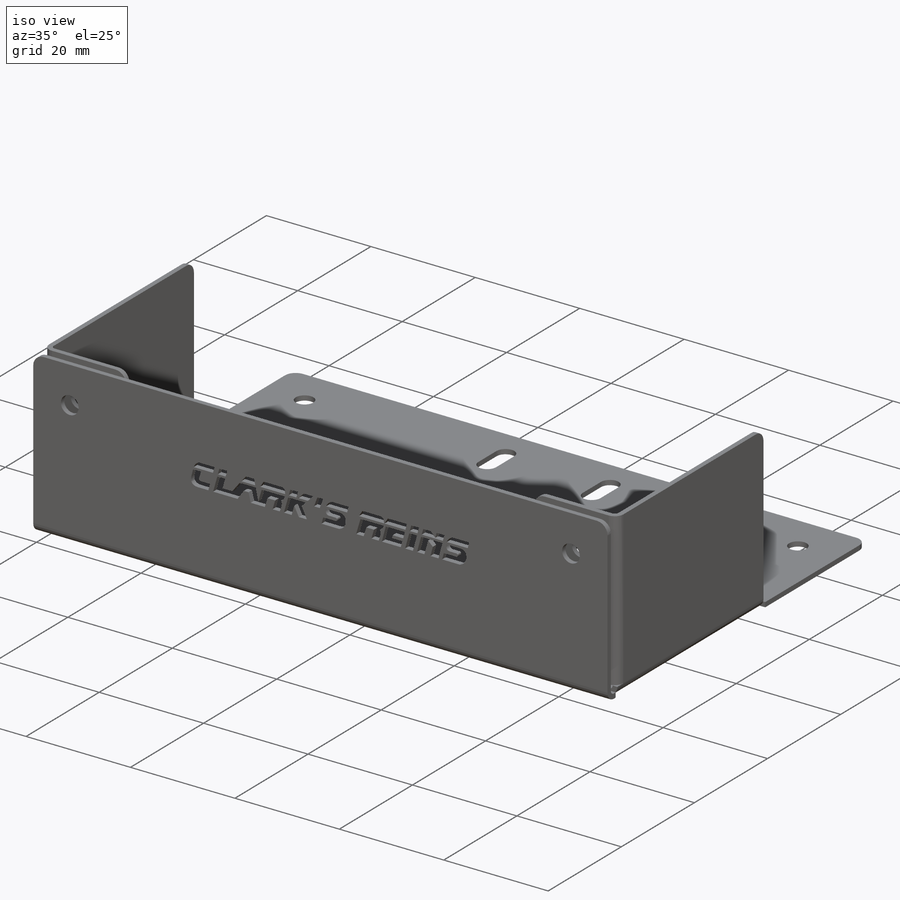
[diagram: iso view]
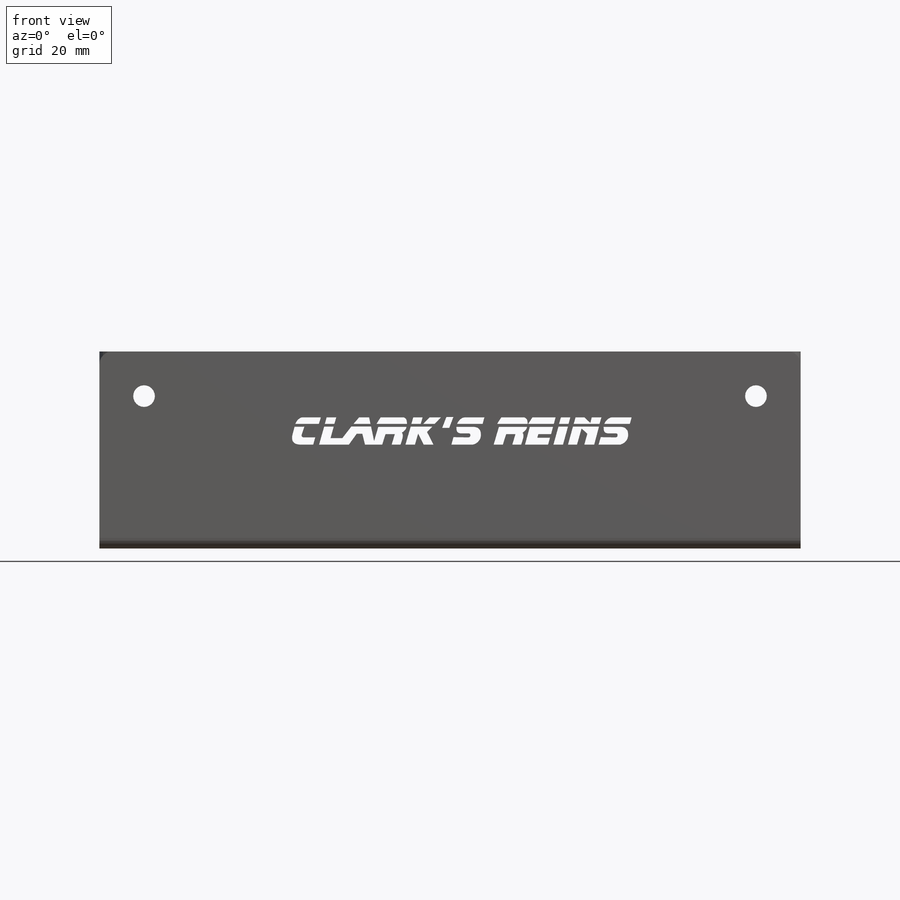
[diagram: front view]
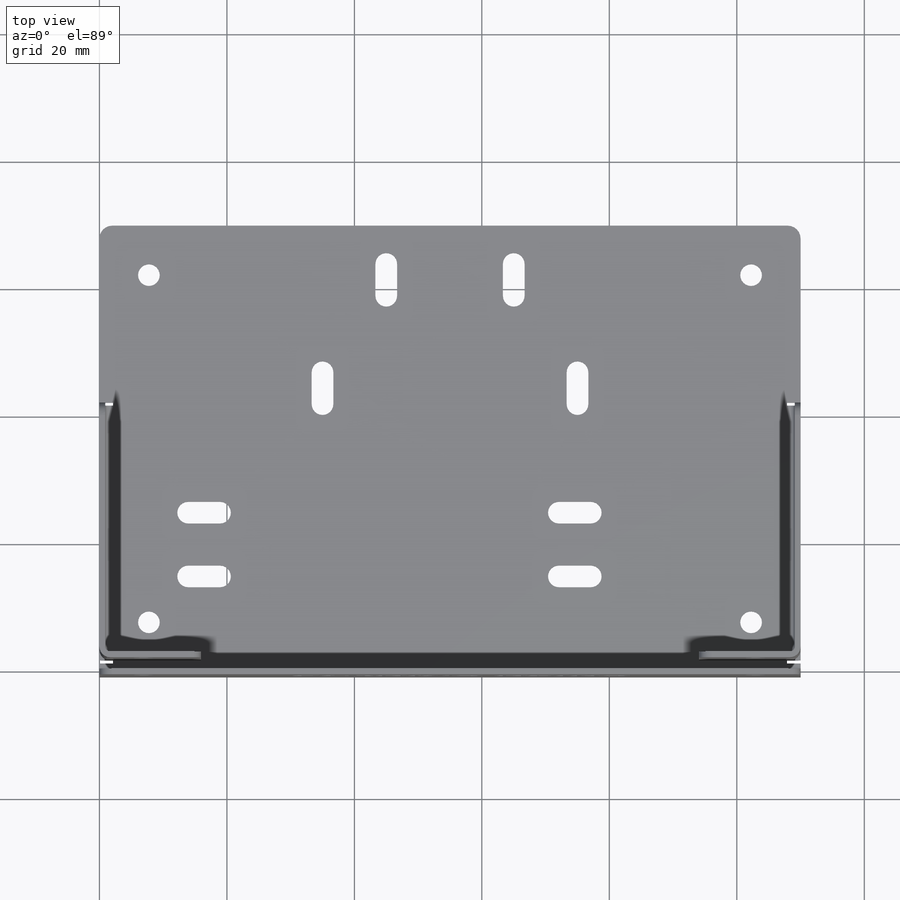
[diagram: top view]
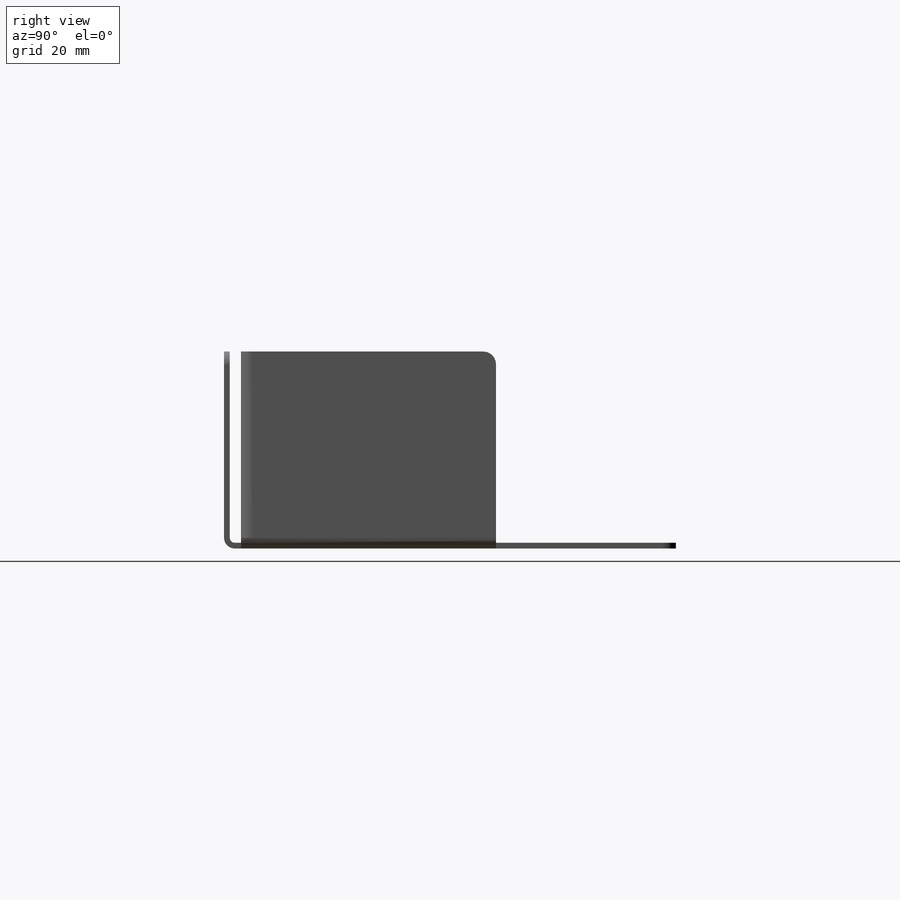
[diagram: right view]
SOLIDWORKS PART (.sldprt)
format: sldprt  version: not decoded by parser v0  size: 1,094,144 bytes
history: native  units: mm
features: sketch x46, sheet_metal_op x19, fillet x14, hole x5, cut_extrude x3, plane x2, material x1, mirror x1 + 54 further entries (+12 scaffold rows collapsed; 14 parser-record rows omitted)
feature tree (171):
  scaffold x12  (default folders/planes/origin — collapsed)
  material  "Material <not specified>"
  sketch  "Sketch1"  dims[c1.D1=~35.089755mm c1.D2=~130.212586mm c2.D1=110.0mm c2.D2=70.0mm c3.D1=0.762mm c3.D2=0.389 c3.D3=1.1938mm c3.D6=500.0mm]
  sheet_metal_op  "Base-Flange1"
  plane  "Mid Length"
  plane  "Mid Width"
  sketch  "Sketch8"  dims[c1.D1=0.762mm c1.D4=90.0deg c1.D5=1.0 c1.D8=0.455mm c1.D9=0.455mm c2.D1=0.762mm c2.D2=500.0mm c2.D3=0.0mm c2.D6=10.0mm c2.D7=30.0mm c2.Edge-Flange2=0.0]
  sketch  "Sketch13"  dims[c1.D1=40.0mm c1.D2=30.0mm c2.D1=1.0mm c2.D2=40.0mm]
  sheet_metal_op  "EdgeBend4"  Edge-Flange3=0
  sketch  "Sketch16"
  sheet_metal_op  "EdgeBend3"
  hole  "M3 Clearance Hole3"  Diameter=3.4mm Depth=3.581mm
  sketch  "Sketch35"  dims[D1=7.0mm D2=7.0mm]
  sketch  "Sketch34"  dims[hole-wizard template sketch: 47 standard entries collapsed; hole parameters kept: c15.Hole Depth=3.581mm c15.D3=~14.816244mm c15.Drill Angle=118.0deg]
  mirror  "Mirror6"
  sheet_metal_op  "MirrorBend4"
  sheet_metal_op  "MirrorBend5"
  hole  "M3 Clearance Hole1"  Diameter=3.4mm Depth=0.91mm
  sketch  "Sketch27"  dims[c1.D1=7.0mm c1.D2=~11.26805mm c2.D2=90.0deg c3.D2=7.0mm c3.D1=7.762mm c4.D2=7.762mm]
  sketch  "Sketch26"  dims[hole-wizard template sketch: 60 standard entries collapsed; hole parameters kept: c18.Thru Hole Depth=0.91mm]
  hole  "Copy of M3 Hole"  [1 undecoded]
  sketch  "Sketch28"  dims[c1.D1=15.0mm c1.D2=~22.439381mm c2.D1=25.0mm]
  cut_extrude  "Clark's Reins"  [1 undecoded]
  hole  "M3 Clearance Hole2"  Diameter=3.4mm Depth=0.91mm
  sketch  "Sketch31"  dims[c1.D1=15.0mm c1.D2=10.0mm c1.D3=10.0mm c1.D4=20.0mm c1.D5=20.0mm c1.D6=8.5mm c1.D7=8.5mm c2.D1=17.0mm]
  sketch  "Sketch30"  dims[hole-wizard template sketch: 60 standard entries collapsed; hole parameters kept: c18.Thru Hole Depth=0.91mm]
  sketch  "Sketch32"  dims[D1=9.0mm D2=~9.850855mm]
  sketch  "Sketch33"  dims[D1=3.4mm D2=5.0mm D3=~5.221719mm]
  cut_extrude  "Cut-Extrude2"  [1 undecoded]
  hole  "M3 Clearance Hole4"  Diameter=3.4mm Depth=0.91mm
  sketch  "Sketch38"
  sketch  "Sketch39"  dims[hole-wizard template sketch: 60 standard entries collapsed; hole parameters kept: c18.Thru Hole Depth=0.91mm]
  sketch  "Sketch40"  dims[D1=3.4mm D2=5.0mm D3=~4.601731mm]
  cut_extrude  "Cut-Extrude3"  [1 undecoded]
  fillet  "Fillet1"  Radius=2mm
  sketch  "Bend-Lines1"
  sketch  "Bounding-Box1"
  sheet_metal_op  "Sheet-Metal(1)"
  "Flat-Pattern(1)"
  sketch  "Bend-Lines2"
  sketch  "Bounding-Box2"
  parser-record x14  (decoder bookkeeping rows leaked as tree rows — omitted from the tree; the rows remain in map.json)
  fillet  "Sheet-Metal(2)"  Radius=0.762mm
  sheet_metal_op  "Flat-Pattern(1)"
  sketch  "Bend-Lines2"
  sketch  "Bounding-Box2"
  fillet  "Sheet-Metal(3)"  Radius=0.762mm
  sheet_metal_op  "Flat-Pattern(1)"
  sketch  "Bend-Lines2"
  sketch  "Bounding-Box2"
  "Flatten-<EdgeBend1>1"
  "Flatten-<EdgeBend4>1"
  fillet  "Sheet-Metal(4)"  Radius=0.762mm
  sheet_metal_op  "Flat-Pattern(1)"
  sketch  "Bend-Lines2"
  sketch  "Bounding-Box2"
  "Flatten-<EdgeBend1>1"
  "Flatten-<EdgeBend3>1"
  "Flatten-<EdgeBend4>2"
  fillet  "Sheet-Metal(10)"  Radius=0.762mm
  sheet_metal_op  "Flat-Pattern(1)"
  sketch  "Bend-Lines2"
  sketch  "Bounding-Box2"
  "Flatten-<EdgeBend1>1"
  "Flatten-<EdgeBend3>1"
  "Flatten-<MirrorBend4>2"
  "Flatten-<EdgeBend4>5"
  "Flatten-<MirrorBend5>2"
  fillet  "Sheet-Metal(11)"  Radius=0.762mm
  sheet_metal_op  "Flat-Pattern(1)"
  sketch  "Bend-Lines2"
  sketch  "Bounding-Box2"
  "Flatten-<EdgeBend1>1"
  "Flatten-<EdgeBend3>1"
  "Flatten-<MirrorBend4>3"
  "Flatten-<EdgeBend4>6"
  "Flatten-<MirrorBend5>3"
  fillet  "Sheet-Metal(12)"  Radius=0.762mm
  sheet_metal_op  "Flat-Pattern(1)"
  sketch  "Bend-Lines2"
  sketch  "Bounding-Box2"
  "Flatten-<EdgeBend1>1"
  "Flatten-<EdgeBend3>1"
  "Flatten-<MirrorBend4>4"
  "Flatten-<EdgeBend4>7"
  "Flatten-<MirrorBend5>4"
  fillet  "Sheet-Metal(13)"  Radius=0.762mm
  sheet_metal_op  "Flat-Pattern(1)"
  sketch  "Bend-Lines2"
  sketch  "Bounding-Box2"
  "Flatten-<EdgeBend1>1"
  "Flatten-<EdgeBend3>1"
  "Flatten-<MirrorBend4>5"
  "Flatten-<EdgeBend4>8"
  "Flatten-<MirrorBend5>5"
  fillet  "Sheet-Metal(14)"  Radius=0.762mm
  sheet_metal_op  "Flat-Pattern(1)"
  sketch  "Bend-Lines2"
  sketch  "Bounding-Box2"
  "Flatten-<EdgeBend1>1"
  "Flatten-<EdgeBend3>1"
  "Flatten-<MirrorBend4>6"
  "Flatten-<EdgeBend4>9"
  "Flatten-<MirrorBend5>6"
  fillet  "Sheet-Metal(15)"  Radius=0.762mm
  sheet_metal_op  "Flat-Pattern(1)"
  sketch  "Bend-Lines2"
  sketch  "Bounding-Box2"
  "Flatten-<EdgeBend1>1"
  "Flatten-<EdgeBend3>1"
  "Flatten-<MirrorBend4>7"
  "Flatten-<EdgeBend4>10"
  "Flatten-<MirrorBend5>7"
  fillet  "Sheet-Metal(16)"  Radius=0.762mm
  sheet_metal_op  "Flat-Pattern(1)"
  sketch  "Bend-Lines2"
  sketch  "Bounding-Box2"
  "Flatten-<EdgeBend1>1"
  "Flatten-<EdgeBend3>1"
  "Flatten-<EdgeBend4>3"
  fillet  "Sheet-Metal(19)"  Radius=0.762mm
  sheet_metal_op  "Flat-Pattern(1)"
  sketch  "Bend-Lines2"
  sketch  "Bounding-Box2"
  "Flatten-<EdgeBend1>1"
  "Flatten-<EdgeBend3>1"
  "Flatten-<MirrorBend4>1"
  "Flatten-<EdgeBend4>4"
  "Flatten-<MirrorBend5>1"
  fillet  "Sheet-Metal(20)"  Radius=0.762mm
  sheet_metal_op  "Flat-Pattern(1)"
  sketch  "Bend-Lines2"
  sketch  "Bounding-Box2"
  "Flatten-<EdgeBend1>1"
  "Flatten-<EdgeBend3>1"
  "Flatten-<MirrorBend4>7"
  "Flatten-<EdgeBend4>11"
  "Flatten-<MirrorBend5>8"
  fillet  "Sheet-Metal(21)"  Radius=0.762mm
  sheet_metal_op  "Flat-Pattern(1)"
  sketch  "Bend-Lines2"
  sketch  "Bounding-Box2"
  "Flatten-<EdgeBend1>1"
  "Flatten-<EdgeBend3>1"
  "Flatten-<MirrorBend4>7"
  "Flatten-<EdgeBend4>12"
  "Flatten-<MirrorBend5>9"
decode coverage: 33 of 88 modeling features carry decoded parameters; 54 rows unclassified (native names shown)
note: ~ marks probable driven/reference dimensions
note: 4 parameter values undecoded
summary: no parameter record found for 4 features; Diameter pulled from absorbed wizard sketch
note: suppression state not decoded; provenance and decode notes live in map.json
